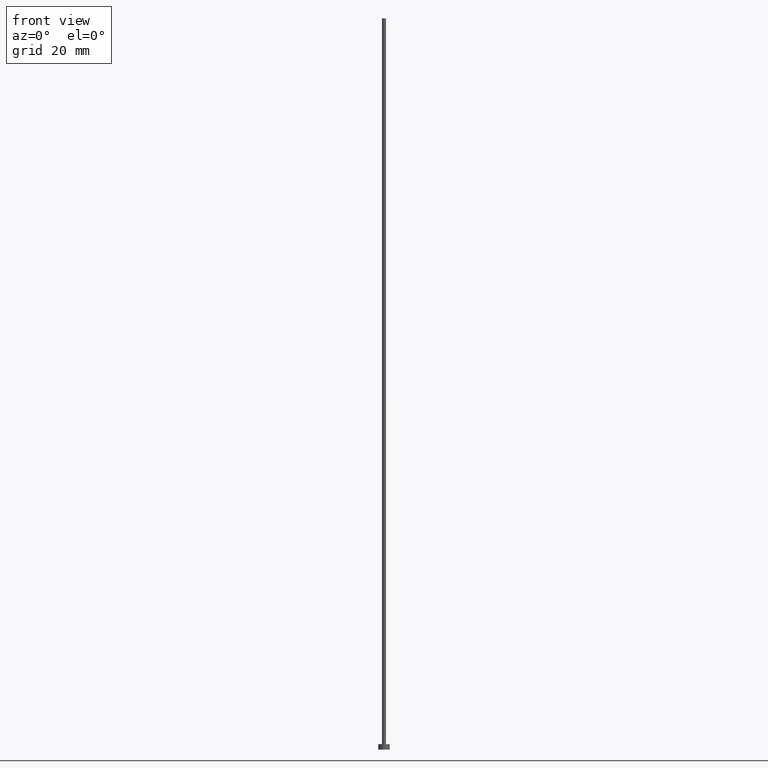
[diagram: clean part render]
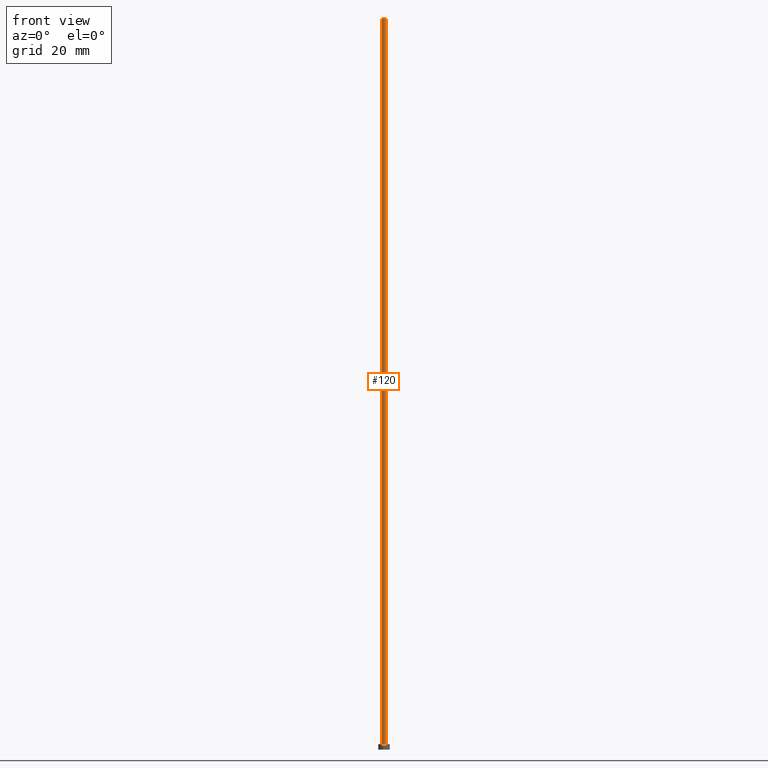
[diagram: same view with one face highlighted and labeled with its STEP entity id]
A machine part, front view. The second image highlights one B-rep face of the part: STEP entity #120.
In plain terms, the highlighted cylindrical surface (edge-blend (fillet) strip) has radius 0.45 mm, axis along (-0, -0, -1).
Its self-contained STEP definition (entity closure, byte-faithful):
#3 = ORIENTED_EDGE ( 'NONE', *, *, #46, .F. ) ;
#6 = ORIENTED_EDGE ( 'NONE', *, *, #167, .T. ) ;
#7 = CIRCLE ( 'NONE', #124, 0.4500000000000000111 ) ;
#14 = VECTOR ( 'NONE', #18, 1000.000000000000000 ) ;
#16 = CARTESIAN_POINT ( 'NONE',  ( -0.4500000000000000111, 0.000000000000000000, 1.199999999999999956 ) ) ;
#17 = CARTESIAN_POINT ( 'NONE',  ( -0.4500000000000000111, 0.000000000000000000, 160.0000000000000284 ) ) ;
#18 = DIRECTION ( 'NONE',  ( -0.000000000000000000, -0.000000000000000000, -1.000000000000000000 ) ) ;
#20 = CARTESIAN_POINT ( 'NONE',  ( 0.000000000000000000, 0.000000000000000000, 160.0000000000000284 ) ) ;
#21 = CARTESIAN_POINT ( 'NONE',  ( 0.4500000000000000111, 5.510910596163088939E-17, 160.0000000000000284 ) ) ;
#28 = DIRECTION ( 'NONE',  ( 1.000000000000000000, 0.000000000000000000, 0.000000000000000000 ) ) ;
#39 = ORIENTED_EDGE ( 'NONE', *, *, #164, .T. ) ;
#46 = EDGE_CURVE ( 'NONE', #144, #177, #176, .T. ) ;
#57 = DIRECTION ( 'NONE',  ( -0.000000000000000000, -0.000000000000000000, -1.000000000000000000 ) ) ;
#58 = AXIS2_PLACEMENT_3D ( 'NONE', #152, #245, #28 ) ;
#67 = VECTOR ( 'NONE', #57, 1000.000000000000000 ) ;
#81 = LINE ( 'NONE', #17, #14 ) ;
#83 = LINE ( 'NONE', #21, #67 ) ;
#84 = EDGE_CURVE ( 'NONE', #177, #170, #83, .T. ) ;
#91 = EDGE_LOOP ( 'NONE', ( #239, #3, #39, #6 ) ) ;
#98 = CARTESIAN_POINT ( 'NONE',  ( 0.4500000000000000111, 5.510910596163088939E-17, 160.0000000000000284 ) ) ;
#100 = CARTESIAN_POINT ( 'NONE',  ( 0.4500000000000000111, 5.510910596163088939E-17, 1.199999999999999956 ) ) ;
#106 = DIRECTION ( 'NONE',  ( -0.000000000000000000, -0.000000000000000000, -1.000000000000000000 ) ) ;
#117 = DIRECTION ( 'NONE',  ( 0.000000000000000000, 0.000000000000000000, 1.000000000000000000 ) ) ;
#120 = ADVANCED_FACE ( 'NONE', ( #211 ), #134, .T. ) ;
#124 = AXIS2_PLACEMENT_3D ( 'NONE', #196, #117, #197 ) ;
#125 = AXIS2_PLACEMENT_3D ( 'NONE', #20, #106, #193 ) ;
#134 = CYLINDRICAL_SURFACE ( 'NONE', #125, 0.4500000000000000111 ) ;
#141 = CARTESIAN_POINT ( 'NONE',  ( -0.4500000000000000111, 0.000000000000000000, 160.0000000000000284 ) ) ;
#144 = VERTEX_POINT ( 'NONE', #141 ) ;
#152 = CARTESIAN_POINT ( 'NONE',  ( 0.000000000000000000, 0.000000000000000000, 160.0000000000000284 ) ) ;
#164 = EDGE_CURVE ( 'NONE', #144, #206, #81, .T. ) ;
#167 = EDGE_CURVE ( 'NONE', #206, #170, #7, .T. ) ;
#170 = VERTEX_POINT ( 'NONE', #100 ) ;
#176 = CIRCLE ( 'NONE', #58, 0.4500000000000000111 ) ;
#177 = VERTEX_POINT ( 'NONE', #98 ) ;
#193 = DIRECTION ( 'NONE',  ( -1.000000000000000000, 0.000000000000000000, 0.000000000000000000 ) ) ;
#196 = CARTESIAN_POINT ( 'NONE',  ( 0.000000000000000000, 0.000000000000000000, 1.199999999999999956 ) ) ;
#197 = DIRECTION ( 'NONE',  ( 1.000000000000000000, 0.000000000000000000, 0.000000000000000000 ) ) ;
#206 = VERTEX_POINT ( 'NONE', #16 ) ;
#211 = FACE_OUTER_BOUND ( 'NONE', #91, .T. ) ;
#239 = ORIENTED_EDGE ( 'NONE', *, *, #84, .F. ) ;
#245 = DIRECTION ( 'NONE',  ( 0.000000000000000000, 0.000000000000000000, 1.000000000000000000 ) ) ;